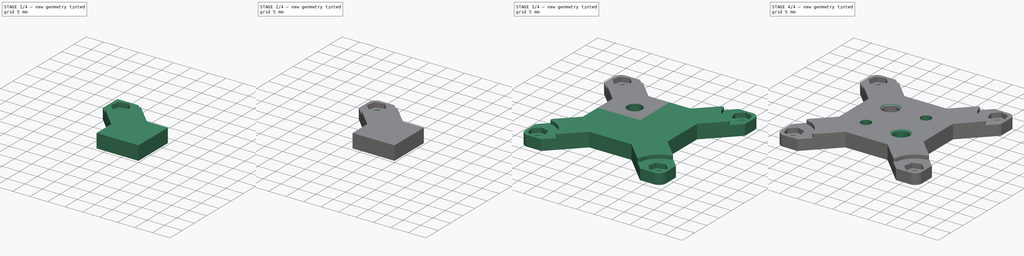
[diagram: build sequence overview — one tinted view per stage of 4, left to right]
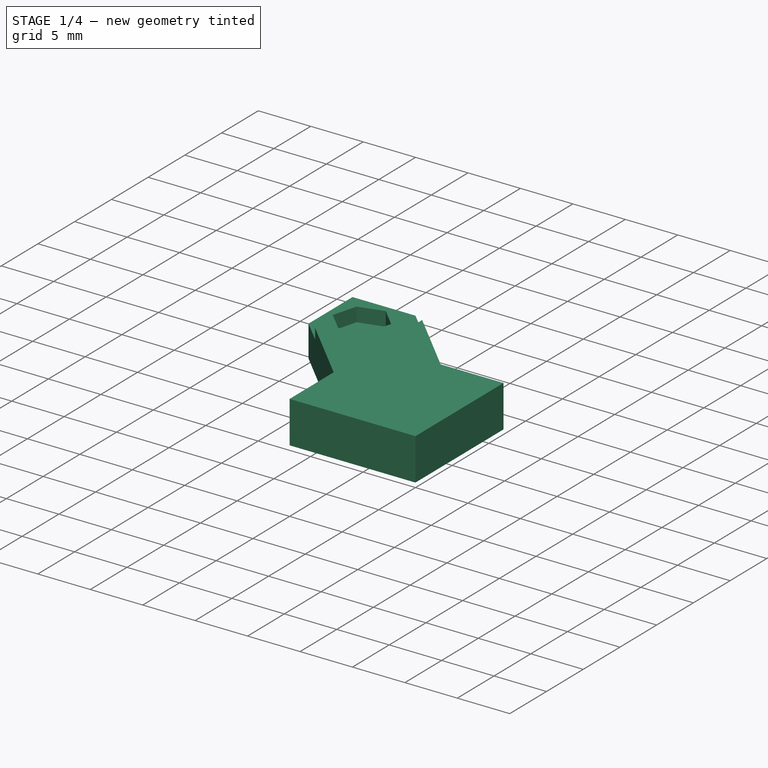
[diagram: stage 1 of 4 — iso view after this stage's code; geometry added in this stage tinted green]
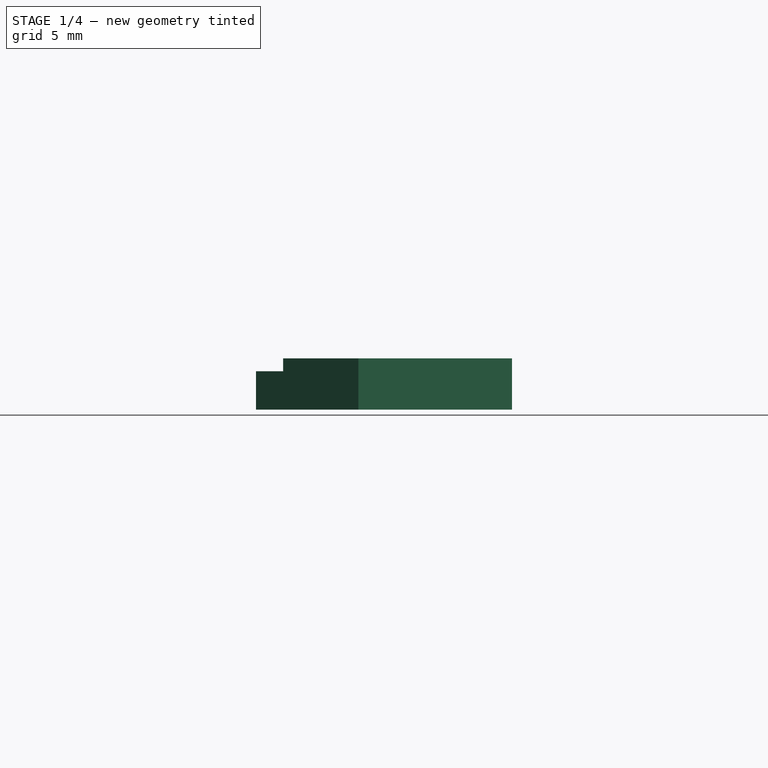
[diagram: stage 1 of 4 — front view after this stage's code; geometry added in this stage tinted green]
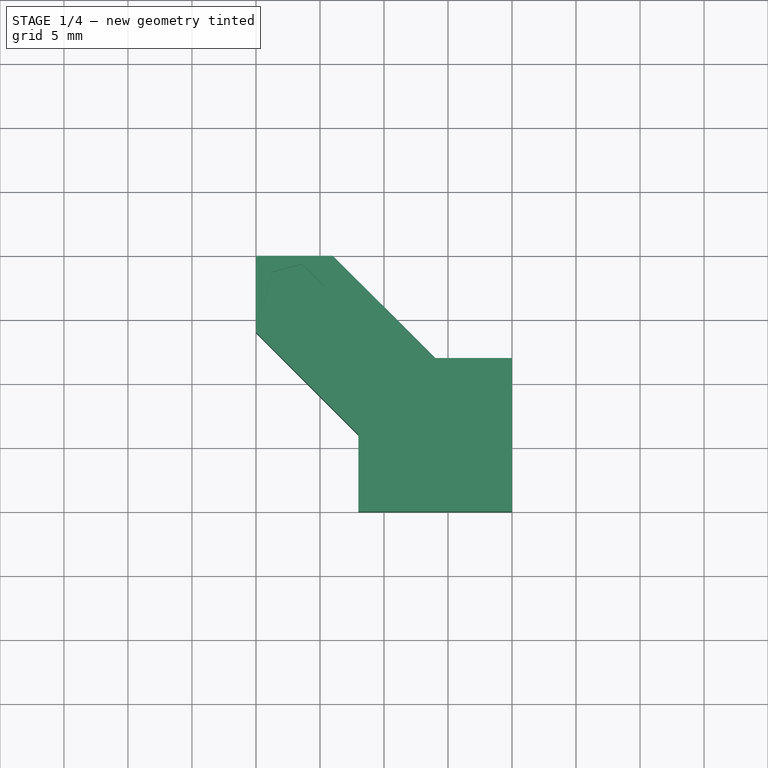
[diagram: stage 1 of 4 — top view after this stage's code; geometry added in this stage tinted green]
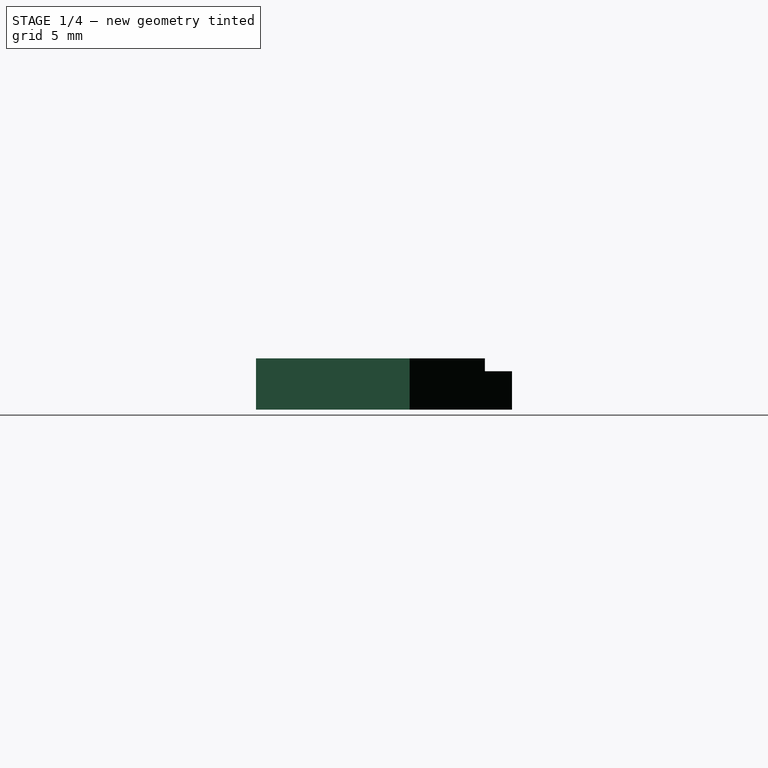
[diagram: stage 1 of 4 — right view after this stage's code; geometry added in this stage tinted green]
FCSTD DOCUMENT  (FreeCAD 0.19R)
Label: flower
License: All rights reserved
LicenseURL: http://en.wikipedia.org/wiki/All_rights_reserved
objects: Sketcher::SketchObject×7, PartDesign::Pocket×4, PartDesign::Hole×2, PartDesign::Fillet×2, PartDesign::Mirrored×2, PartDesign::PolarPattern×2, PartDesign::Pad×1, PartDesign::MultiTransform×1, PartDesign::Chamfer×1, PartDesign::Body×1
note: 33 computed .brp shape members not serialized (recipe doc carries the construction recipe); baked Part::Feature solids carry a one-line shape summary decoded from their .brp

FEATURE [Sketcher::SketchObject] Sketch  label="quad_base_sketch"
  FullyConstrained = true
  MapMode = 5
  Support = -> [XY_Plane]
  sketch-geometry (10):
    g0: LineSegment StartX=0 StartY=0 StartZ=0 EndX=-12 EndY=0 EndZ=0
    g1: LineSegment StartX=0 StartY=12 StartZ=0 EndX=0 EndY=0 EndZ=0
    g2: GeomPoint X=-6 Y=12 Z=0
    g3: GeomPoint X=-12 Y=6 Z=0
    g4: LineSegment StartX=-6 StartY=12 StartZ=0 EndX=0 EndY=12 EndZ=0
    g5: LineSegment StartX=-12 StartY=6 StartZ=0 EndX=-12 EndY=0 EndZ=0
    g6: LineSegment StartX=-6 StartY=12 StartZ=0 EndX=-14 EndY=20 EndZ=0
    g7: LineSegment StartX=-14 StartY=20 StartZ=0 EndX=-20 EndY=20 EndZ=0
    g8: LineSegment StartX=-20 StartY=20 StartZ=0 EndX=-20 EndY=14 EndZ=0
    g9: LineSegment StartX=-20 StartY=14 StartZ=0 EndX=-12 EndY=6 EndZ=0
  constraints (25):
    c: Coincident(g1,g0)
    c: Horizontal(g0)
    c: Vertical(g1)
    c: Coincident(g0,g-1)
    c: Coincident(g4,g2)
    c: Coincident(g4,g1)
    c: Horizontal(g4)
    c: Coincident(g5,g3)
    c: Coincident(g5,g0)
    c: Vertical(g5)
    c: Equal(g4,g5)
    c: Coincident(g6,g4)
    c: Coincident(g7,g6)
    c: Horizontal(g7)
    c: Coincident(g8,g7)
    c: Vertical(g8)
    c: Coincident(g9,g8)
    c: Coincident(g9,g5)
    c: Parallel(g6,g9)
    c: Distance(g7) = 6
    c: Equal(g0,g1)
    c: DistanceY(g-1,g7) = 20
    c: DistanceX(g-2,g7) = -20
    c: Angle(g9,g5) = 2.35619
    c: Distance(g0) = 12
FEATURE [PartDesign::Pad] Pad  label="quad_base"
  Direction = (1,1,1)
  Length = 4
  Length2 = 100
  Profile = -> Sketch
  Type = 0
FEATURE [Sketcher::SketchObject] Sketch001  label="thumb_hole_sketch"
  ExternalGeometry = -> [Pad]
  FullyConstrained = true
  MapMode = 5
  Placement = pos=(0,0,4) rot=(0,0,1;0rad)
  Support = -> [Pad]
  sketch-geometry (7):
    g0: LineSegment StartX=-14 StartY=20 StartZ=0 EndX=-20 EndY=20 EndZ=0
    g1: LineSegment StartX=-20 StartY=20 StartZ=0 EndX=-20 EndY=14 EndZ=0
    g2: LineSegment StartX=-20 StartY=20 StartZ=0 EndX=0 EndY=0 EndZ=0
    g3: ArcOfCircle CenterX=-17.8787 CenterY=17.8787 CenterZ=0 NormalX=0 NormalY=0 NormalZ=1 AngleXU=0 Radius=6 StartAngle=4.71239 EndAngle=6.28319
    g4: GeomPoint X=-13.636 Y=13.636 Z=0
    g5: LineSegment StartX=-11.8787 StartY=17.8787 StartZ=0 EndX=-14 EndY=20 EndZ=0
    g6: LineSegment StartX=-17.8787 StartY=11.8787 StartZ=0 EndX=-20 EndY=14 EndZ=0
  constraints (17):
    c: Coincident(g0,g-4)
    c: Coincident(g1,g0)
    c: Coincident(g2,g0)
    c: Coincident(g2,g-1)
    c: PointOnObject(g3,g2)
    c: PointOnObject(g3,g-5)
    c: PointOnObject(g3,g-6)
    c: PointOnObject(g4,g3)
    c: PointOnObject(g4,g2)
    c: Distance(g4,g0) = 9
    c: Radius(g3) = 6
    c: Coincident(g5,g3)
    c: Coincident(g5,g0)
    c: Coincident(g6,g3)
    c: Coincident(g6,g1)
    c: Coincident(g0,g-5)
    c: Coincident(g-6,g1)
FEATURE [PartDesign::Pocket] Pocket  label="thumb_hole"
  BaseFeature = -> Pad
  Length = 1
  Length2 = 100
  Profile = -> Sketch001
  Type = 0
FEATURE [Sketcher::SketchObject] Sketch002  label="M2_hex_countersink_sketch"
  FullyConstrained = true
  MapMode = 5
  Placement = pos=(0,0,3) rot=(0,0,1;0rad)
  Support = -> [Pocket]
  sketch-geometry (8):
    g0: LineSegment StartX=-16.3924 StartY=19.3622 StartZ=0 EndX=-18.7346 EndY=18.7346 EndZ=0
    g1: LineSegment StartX=-18.7346 StartY=18.7346 StartZ=0 EndX=-19.3622 EndY=16.3924 EndZ=0
    g2: LineSegment StartX=-19.3622 StartY=16.3924 StartZ=0 EndX=-17.6476 EndY=14.6778 EndZ=0
    g3: LineSegment StartX=-17.6476 StartY=14.6778 StartZ=0 EndX=-15.3054 EndY=15.3054 EndZ=0
    g4: LineSegment StartX=-15.3054 StartY=15.3054 StartZ=0 EndX=-14.6778 EndY=17.6476 EndZ=0
    g5: LineSegment StartX=-14.6778 StartY=17.6476 StartZ=0 EndX=-16.3924 EndY=19.3622 EndZ=0
    g6: Circle CenterX=-17.02 CenterY=17.02 CenterZ=0 NormalX=0 NormalY=0 NormalZ=1 AngleXU=0 Radius=2.42487
    g7: LineSegment StartX=-18.7346 StartY=18.7346 StartZ=0 EndX=-15.3054 EndY=15.3054 EndZ=0
  constraints (19):
    c: Coincident(g0,g1)
    c: Coincident(g1,g2)
    c: Coincident(g2,g3)
    c: Coincident(g3,g4)
    c: Coincident(g4,g5)
    c: Coincident(g5,g0)
    c: Equal(g0, g1-g5) x5
    c: PointOnObject(g0,g6)
    c: PointOnObject(g1,g6)
    c: PointOnObject(g2,g6)
    c: PointOnObject(g3,g6)
    c: PointOnObject(g4,g6)
    c: PointOnObject(g5,g6)
    c: DistanceX(g-2,g6) = -17.02
    c: DistanceY(g-1,g6) = 17.02
    c: Distance(g0,g3) = 4.2
    c: Coincident(g7,g0)
    c: Coincident(g7,g3)
    c: Angle(g-1,g7) = 2.35619
FEATURE [PartDesign::Pocket] Pocket001  label="M2_hex_countersink"
  BaseFeature = -> Pocket
  Length = 1.35
  Length2 = 100
  Profile = -> Sketch002
  Type = 0
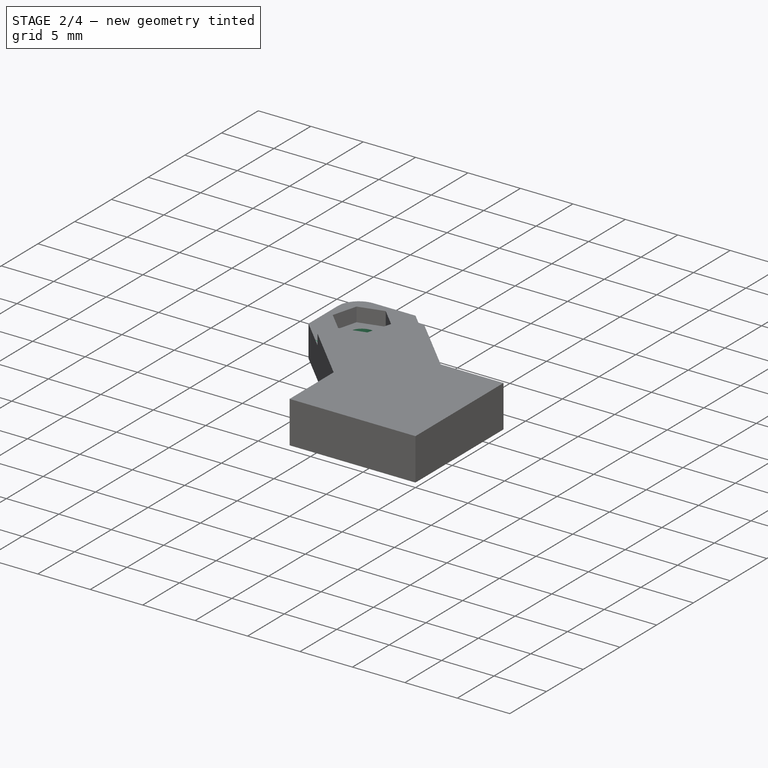
[diagram: stage 2 of 4 — iso view after this stage's code; geometry added in this stage tinted green]
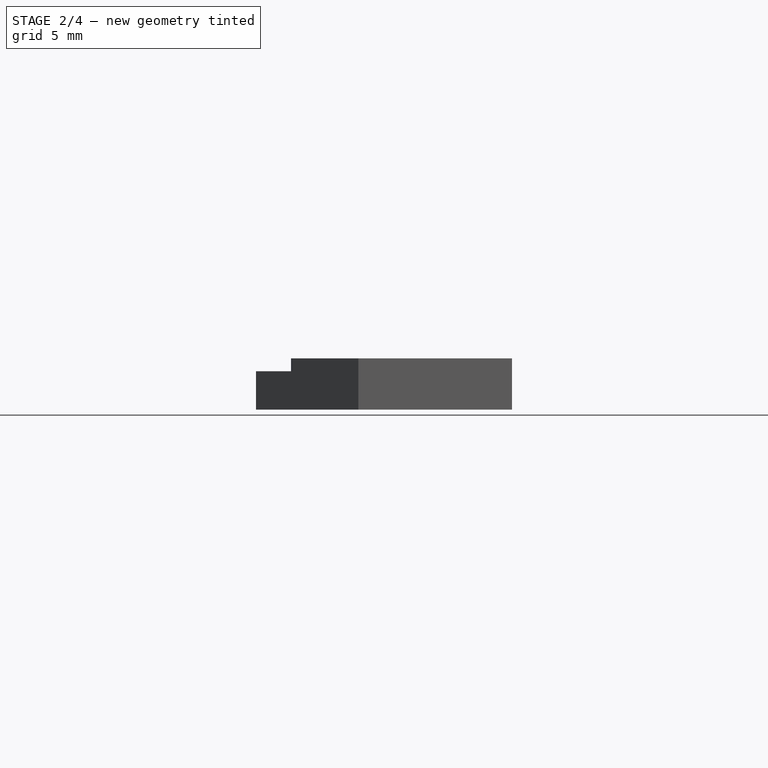
[diagram: stage 2 of 4 — front view after this stage's code; geometry added in this stage tinted green]
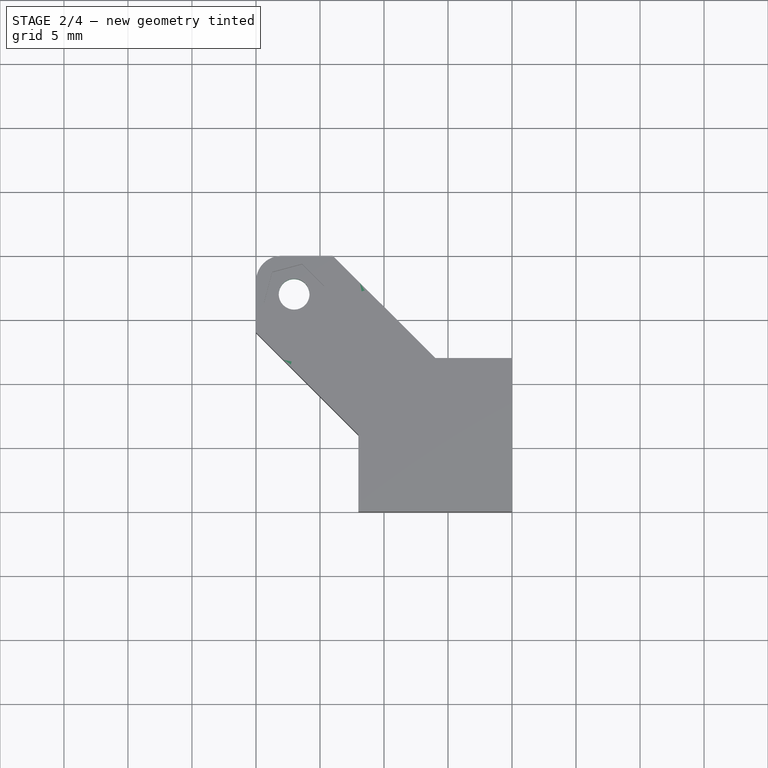
[diagram: stage 2 of 4 — top view after this stage's code; geometry added in this stage tinted green]
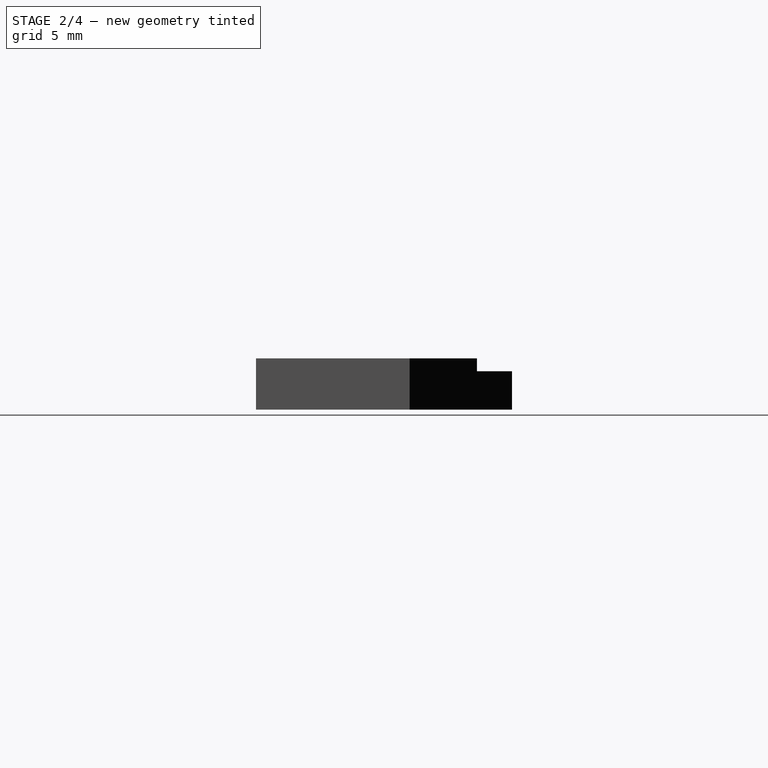
[diagram: stage 2 of 4 — right view after this stage's code; geometry added in this stage tinted green]
FEATURE [Sketcher::SketchObject] Sketch003  label="M2_hole_sketch"
  ExternalGeometry = -> [Pocket001]
  FullyConstrained = true
  MapMode = 5
  Placement = pos=(0,0,1.65) rot=(0,0,1;0rad)
  Support = -> [Pocket001]
  sketch-geometry (1):
    g0: Circle CenterX=-17.02 CenterY=17.02 CenterZ=0 NormalX=0 NormalY=0 NormalZ=1 AngleXU=0 Radius=1
  constraints (2):
    c: Radius(g0) = 1
    c: Symmetric(g-4,g-3,g0)
FEATURE [PartDesign::Hole] Hole  label="M2_hole"
  BaseFeature = -> Pocket001
  Depth = 25
  DepthType = 1
  Diameter = 2.4
  DrillForDepth = false
  DrillPoint = 1
  DrillPointAngle = 118
  HoleCutCountersinkAngle = 90
  HoleCutCustomValues = false
  HoleCutDepth = 0
  HoleCutDiameter = 6.1
  HoleCutType = 0
  ModelActualThread = false
  Profile = -> Sketch003
  Tapered = false
  TaperedAngle = 90
  ThreadAngle = 0
  ThreadClass = 0
  ThreadCutOffInner = 0
  ThreadCutOffOuter = 0
  ThreadDirection = 0
  ThreadFit = 0
  ThreadPitch = 0
  ThreadSize = 6
  ThreadType = 1
  Threaded = false
FEATURE [PartDesign::Fillet] Fillet  label="corner_fillet"
  Base = -> Hole [Edge29]
  BaseFeature = -> Hole
  Radius = 2
  SupportTransform = false
FEATURE [PartDesign::Fillet] Fillet001  label="thumb_fillet"
  Base = -> Fillet [Edge25,Edge18]
  BaseFeature = -> Fillet
  Radius = 0.5
  SupportTransform = false
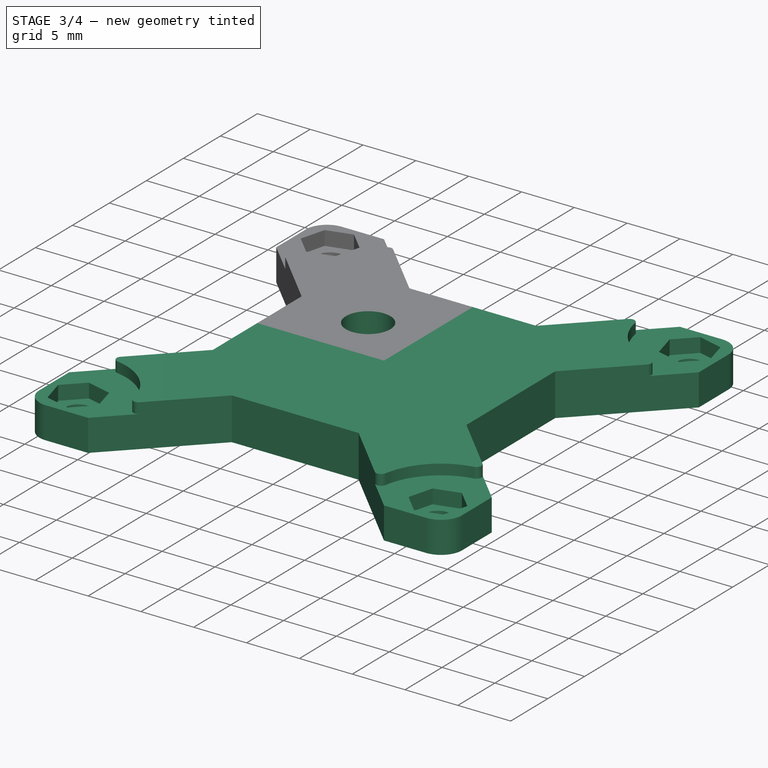
[diagram: stage 3 of 4 — iso view after this stage's code; geometry added in this stage tinted green]
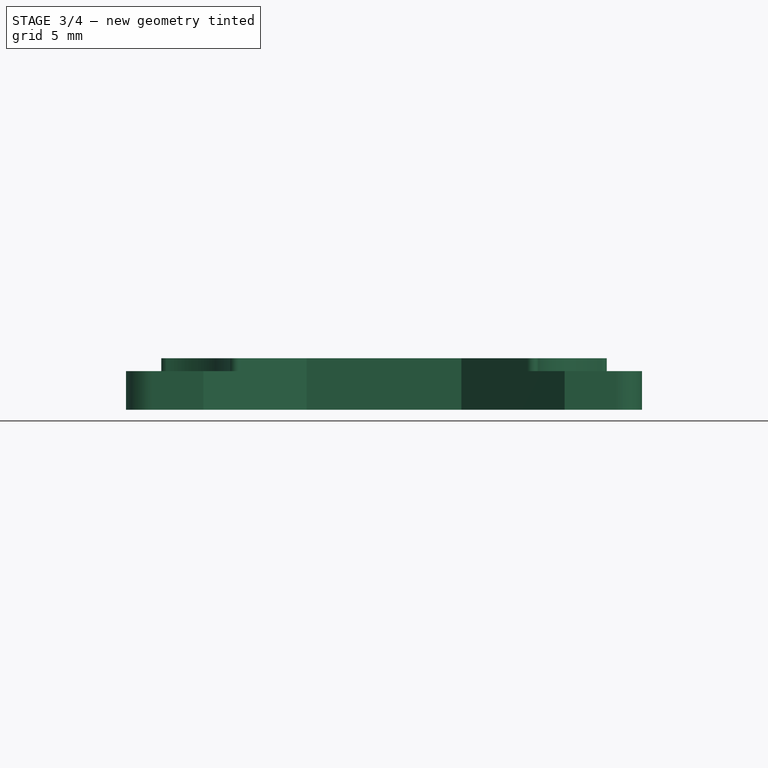
[diagram: stage 3 of 4 — front view after this stage's code; geometry added in this stage tinted green]
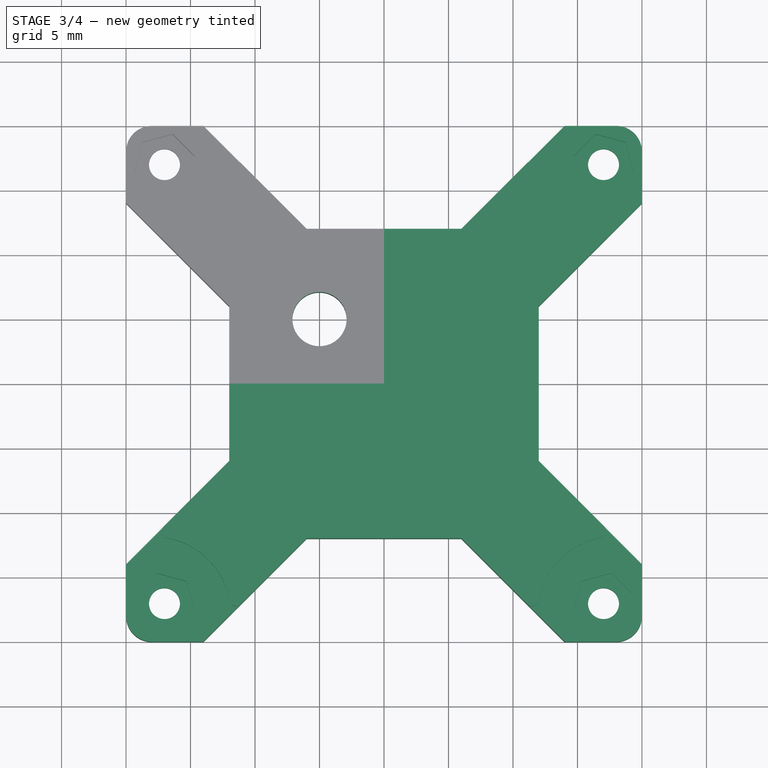
[diagram: stage 3 of 4 — top view after this stage's code; geometry added in this stage tinted green]
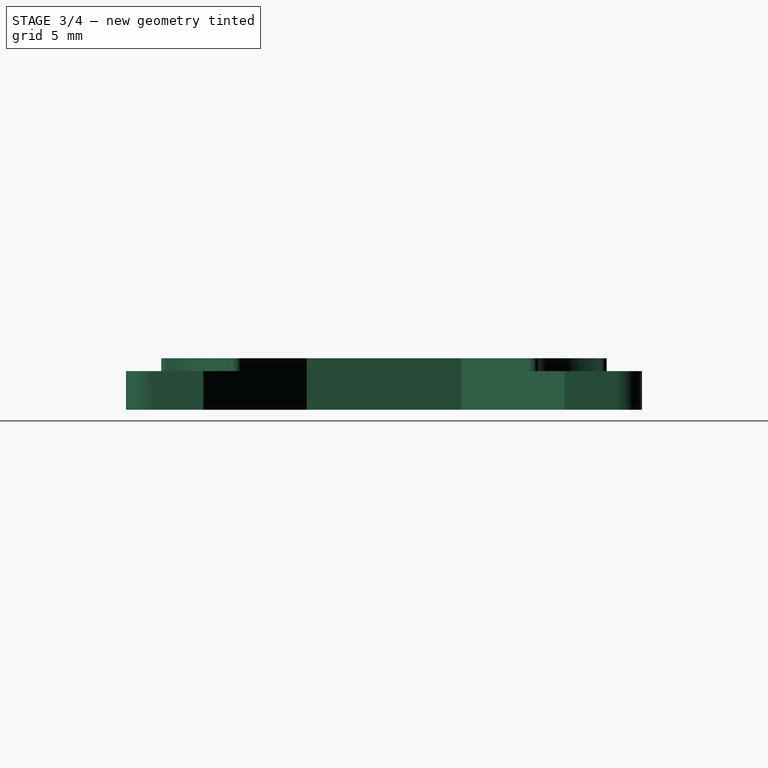
[diagram: stage 3 of 4 — right view after this stage's code; geometry added in this stage tinted green]
FEATURE [PartDesign::Mirrored] Mirrored
  MirrorPlane = -> YZ_Plane
FEATURE [PartDesign::Mirrored] Mirrored001
  MirrorPlane = -> XZ_Plane
FEATURE [PartDesign::MultiTransform] MultiTransform  label="flower_body"
  BaseFeature = -> Fillet001
  Originals = -> [Pad,Pocket,Pocket001,Hole,Fillet,Fillet001]
  Transformations = -> [Mirrored,Mirrored001]
FEATURE [Sketcher::SketchObject] Sketch004  label="lens_screw_countersink_sketch"
  FullyConstrained = true
  MapMode = 5
  Placement = pos=(0,0,0) rot=(1,0,0;3.14159rad)
  Support = -> [MultiTransform]
  sketch-geometry (1):
    g0: Circle CenterX=-9 CenterY=0 CenterZ=0 NormalX=0 NormalY=0 NormalZ=1 AngleXU=0 Radius=2
  constraints (3):
    c: PointOnObject(g0,g-1)
    c: Distance(g-1,g0) = 9
    c: Radius(g0) = 2
FEATURE [PartDesign::Pocket] Pocket002  label="lens_screw_countersink"
  BaseFeature = -> MultiTransform
  Length = 1.5
  Length2 = 100
  Profile = -> Sketch004
  Type = 0
FEATURE [PartDesign::PolarPattern] PolarPattern  label="quad_lens_screw_countersink"
  Angle = 360
  Axis = -> Z_Axis
  BaseFeature = -> Pocket002
  Occurrences = 4
  Originals = -> [Pocket002]
FEATURE [Sketcher::SketchObject] Sketch005  label="dowel_hole_sketch"
  FullyConstrained = true
  MapMode = 5
  Placement = pos=(0,0,0) rot=(1,0,0;3.14159rad)
  Support = -> [PolarPattern]
  sketch-geometry (1):
    g0: Circle CenterX=-5 CenterY=-5 CenterZ=0 NormalX=0 NormalY=0 NormalZ=1 AngleXU=0 Radius=2.1
  constraints (3):
    c: DistanceX(g-2,g0) = -5
    c: DistanceY(g-1,g0) = -5
    c: Radius(g0) = 2.1
FEATURE [PartDesign::Pocket] Pocket003  label="dowel_hole"
  BaseFeature = -> PolarPattern
  Length = 5
  Length2 = 100
  Profile = -> Sketch005
  Type = 1
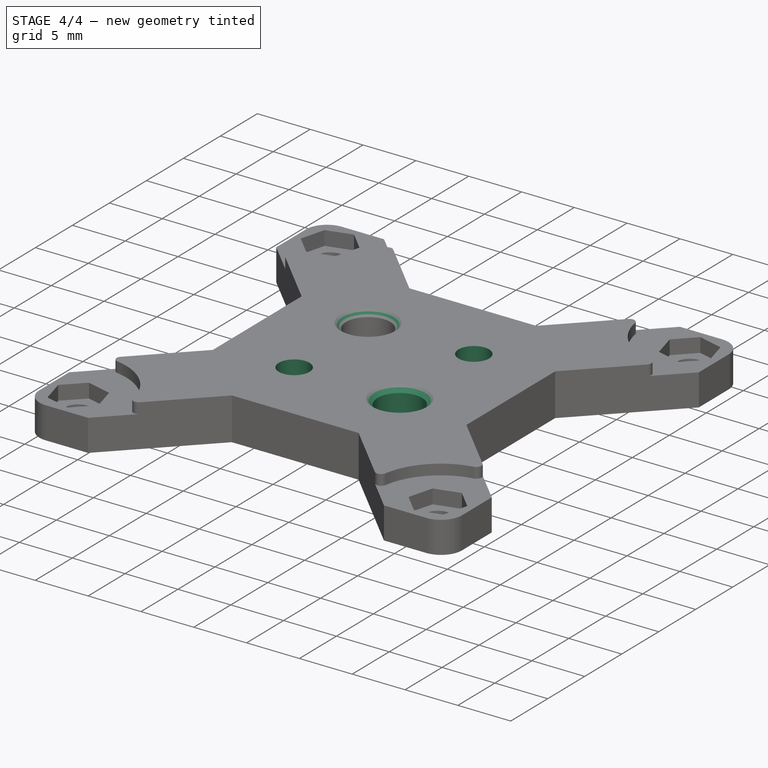
[diagram: stage 4 of 4 — iso view after this stage's code; geometry added in this stage tinted green]
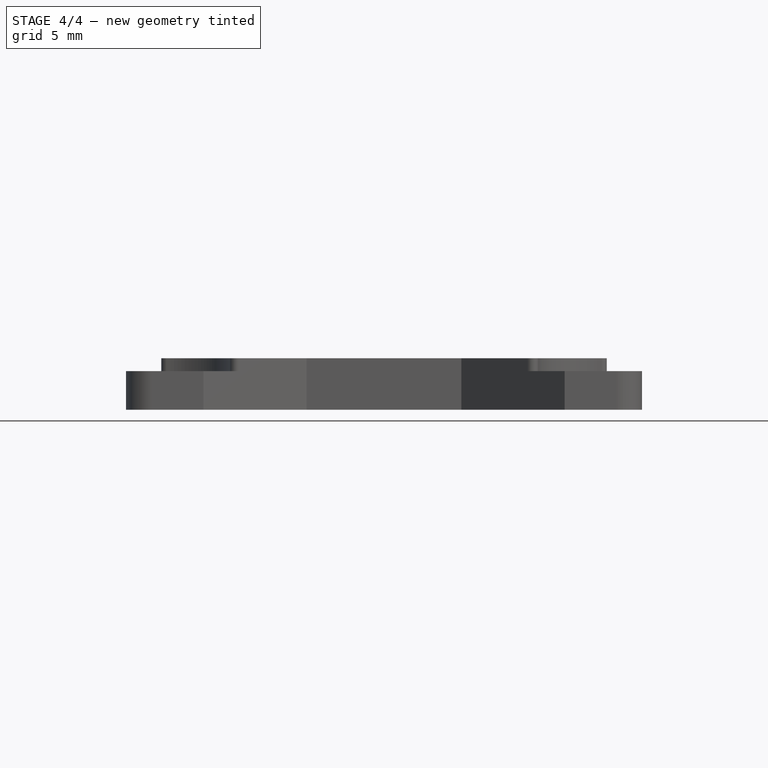
[diagram: stage 4 of 4 — front view after this stage's code; geometry added in this stage tinted green]
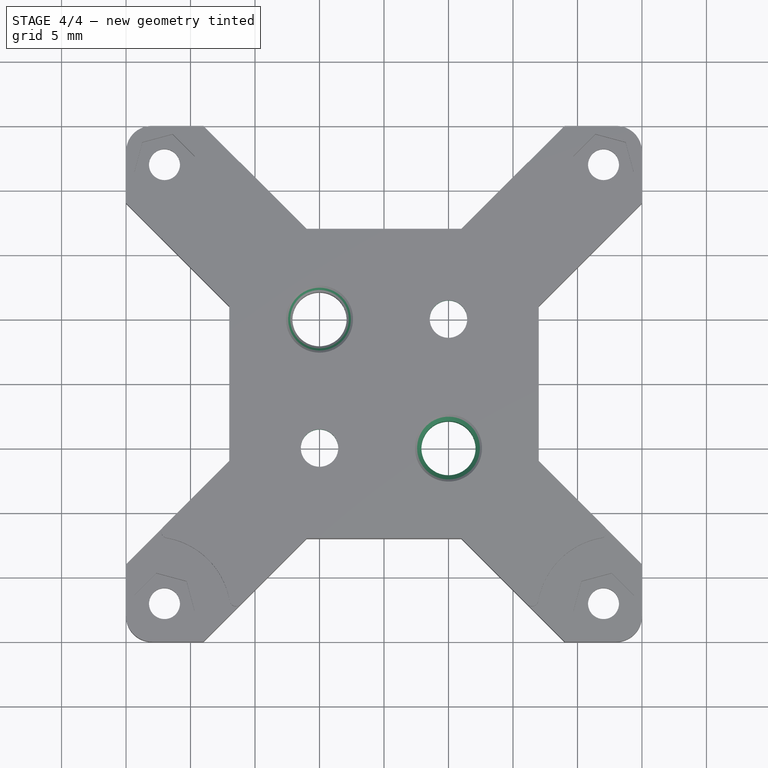
[diagram: stage 4 of 4 — top view after this stage's code; geometry added in this stage tinted green]
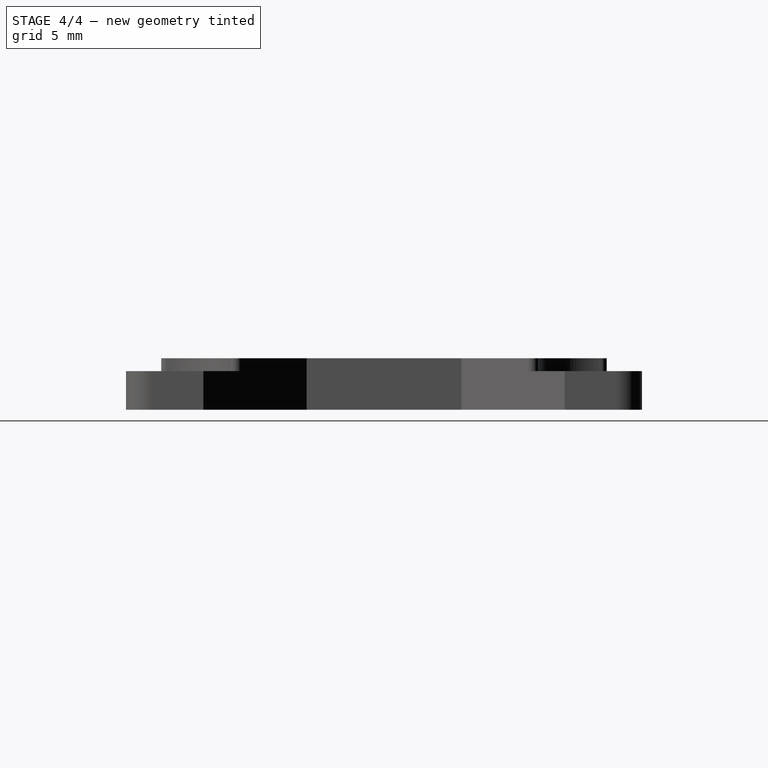
[diagram: stage 4 of 4 — right view after this stage's code; geometry added in this stage tinted green]
FEATURE [Sketcher::SketchObject] Sketch006  label="M25_head_sink_sketch"
  FullyConstrained = true
  MapMode = 5
  Placement = pos=(0,0,0) rot=(1,0,0;3.14159rad)
  Support = -> [Pocket003]
  sketch-geometry (1):
    g0: Circle CenterX=-5 CenterY=5 CenterZ=0 NormalX=0 NormalY=0 NormalZ=1 AngleXU=0 Radius=1
  constraints (3):
    c: DistanceX(g-2,g0) = -5
    c: DistanceY(g-1,g0) = 5
    c: Radius(g0) = 1
FEATURE [PartDesign::Chamfer] Chamfer  label="dowel_chamfer"
  Angle = 45
  Base = -> Pocket003 [Edge16]
  BaseFeature = -> Pocket003
  ChamferType = 0
  FlipDirection = false
  Size = 0.5
  Size2 = 1
  SupportTransform = false
FEATURE [PartDesign::Hole] Hole001  label="M25_head_sink"
  BaseFeature = -> Chamfer
  Depth = 25
  DepthType = 1
  Diameter = 2.9
  DrillForDepth = false
  DrillPoint = 1
  DrillPointAngle = 118
  HoleCutCountersinkAngle = 90
  HoleCutCustomValues = true
  HoleCutDepth = 2.5
  HoleCutDiameter = 6.5
  HoleCutType = 7
  ModelActualThread = false
  Profile = -> Sketch006
  Tapered = false
  TaperedAngle = 90
  ThreadAngle = 0
  ThreadClass = 0
  ThreadCutOffInner = 0
  ThreadCutOffOuter = 0
  ThreadDirection = 0
  ThreadFit = 0
  ThreadPitch = 0
  ThreadSize = 8
  ThreadType = 1
  Threaded = false
FEATURE [PartDesign::PolarPattern] PolarPattern001  label="sepal_connector"
  Angle = 360
  Axis = -> Z_Axis
  BaseFeature = -> Hole001
  Occurrences = 2
  Originals = -> [Pocket003,Chamfer,Hole001]
FEATURE [PartDesign::Body] Body
  Group = -> [Sketch,Pad,Sketch001,Pocket,Sketch002,Pocket001,Sketch003,Hole,Fillet,Fillet001,MultiTransform,Mirrored,Mirrored001,Sketch004,Pocket002,PolarPattern,Sketch005,Pocket003,Chamfer,Sketch006,Hole001,PolarPattern001]
  Origin = -> Origin
  Tip = -> PolarPattern001
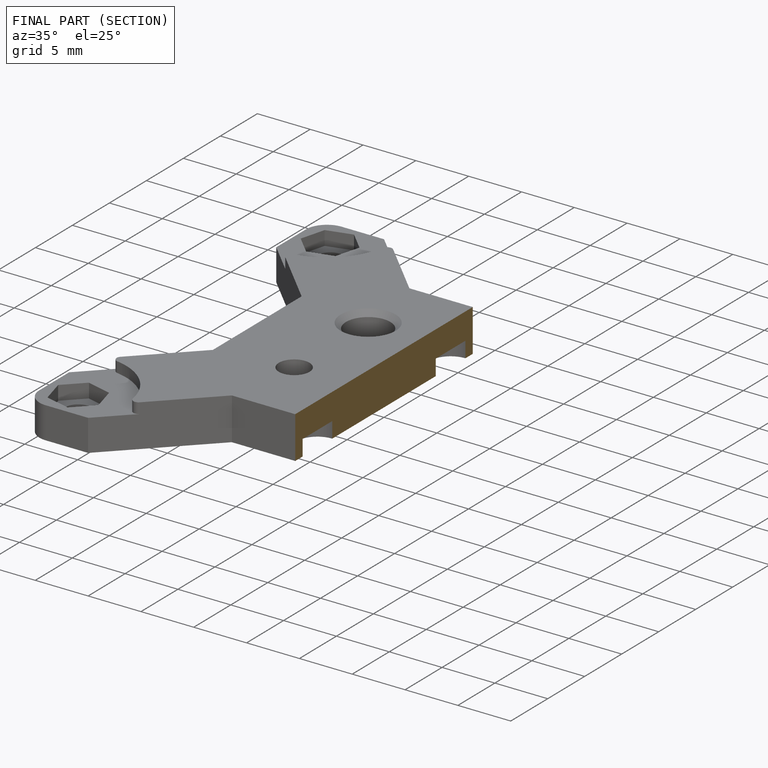
[diagram: finished part — half-section view (interior)]
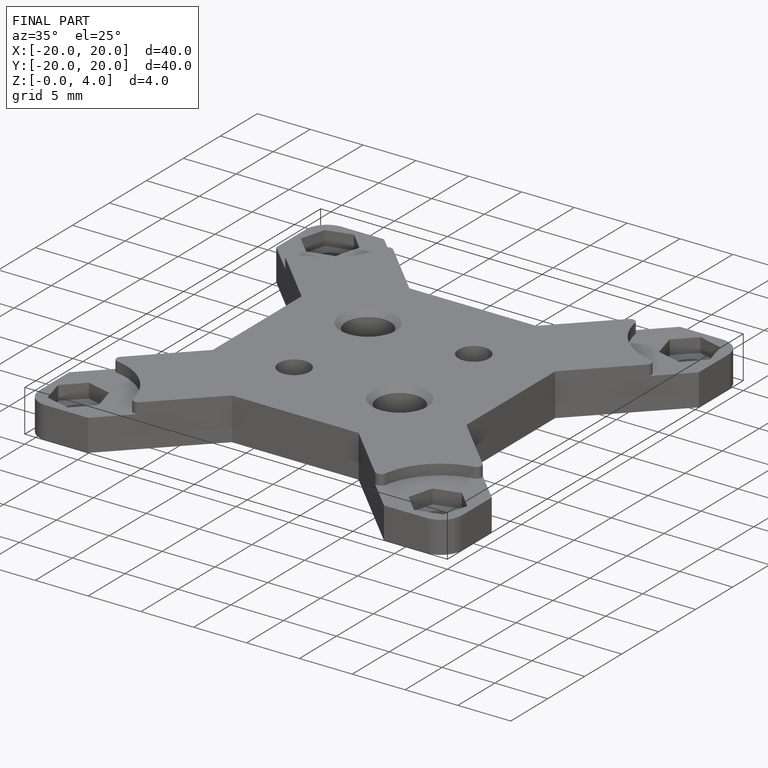
[diagram: finished part — iso view with bounding-box wireframe]
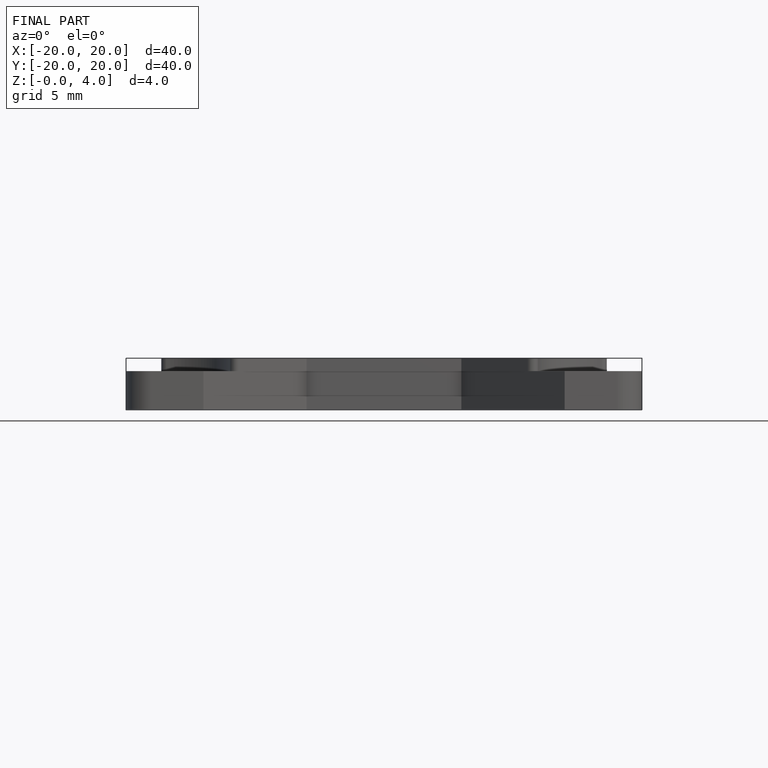
[diagram: finished part — front view with bounding-box wireframe]
